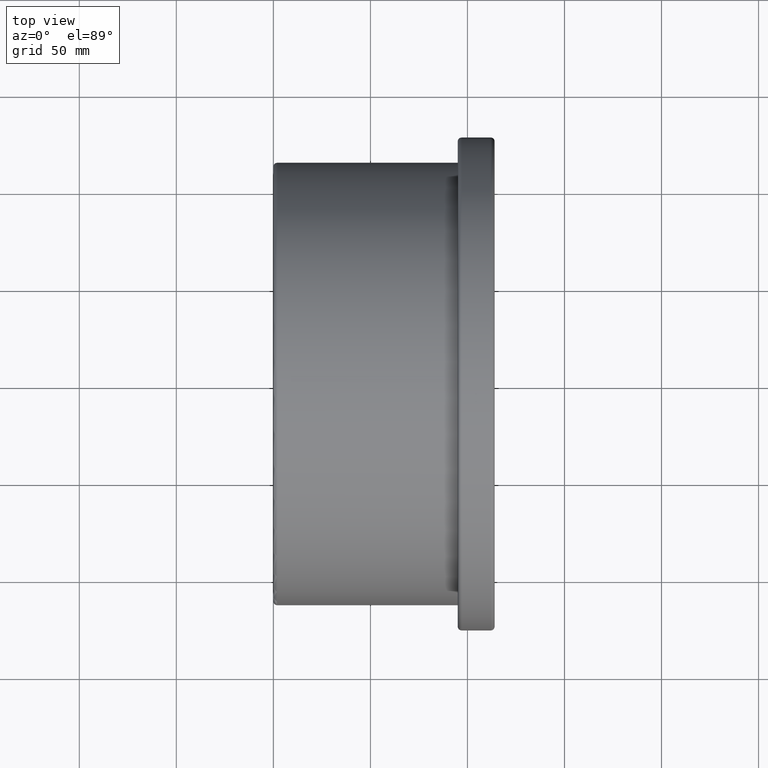
[diagram: clean part render]
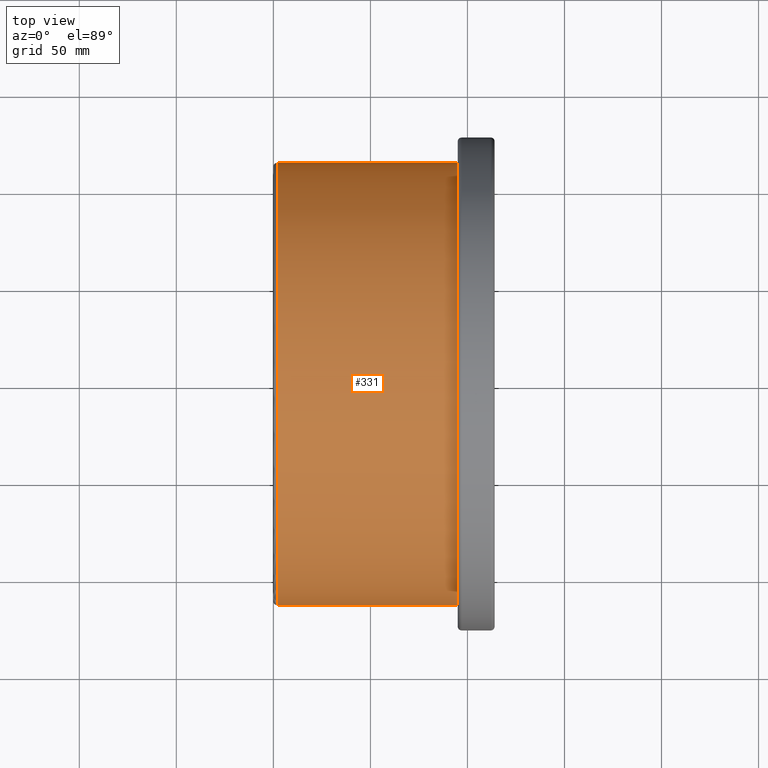
[diagram: same view with one face highlighted and labeled with its STEP entity id]
A machine part, top view. The second image highlights one B-rep face of the part: STEP entity #331.
In plain terms, the highlighted cylindrical surface (bore or boss wall) has radius 114 mm, axis along (-1, 0, 0).
Its self-contained STEP definition (entity closure, byte-faithful):
#23=CYLINDRICAL_SURFACE('',#379,114.);
#64=FACE_BOUND('',#142,.T.);
#92=FACE_OUTER_BOUND('',#141,.T.);
#141=EDGE_LOOP('',(#291));
#142=EDGE_LOOP('',(#292));
#166=CIRCLE('',#376,114.);
#167=CIRCLE('',#378,114.);
#194=VERTEX_POINT('',#2363);
#195=VERTEX_POINT('',#2366);
#227=EDGE_CURVE('',#194,#194,#166,.T.);
#228=EDGE_CURVE('',#195,#195,#167,.T.);
#291=ORIENTED_EDGE('',*,*,#227,.T.);
#292=ORIENTED_EDGE('',*,*,#228,.F.);
#331=ADVANCED_FACE('',(#92,#64),#23,.T.);
#376=AXIS2_PLACEMENT_3D('',#2364,#465,#466);
#378=AXIS2_PLACEMENT_3D('',#2367,#469,#470);
#379=AXIS2_PLACEMENT_3D('',#2368,#471,#472);
#465=DIRECTION('center_axis',(-1.,0.,0.));
#466=DIRECTION('ref_axis',(0.,0.,1.));
#469=DIRECTION('center_axis',(-1.,0.,0.));
#470=DIRECTION('ref_axis',(0.,1.,6.12323399573677E-17));
#471=DIRECTION('center_axis',(-1.,0.,0.));
#472=DIRECTION('ref_axis',(0.,-1.,0.));
#2363=CARTESIAN_POINT('',(95.,-114.,0.));
#2364=CARTESIAN_POINT('Origin',(95.,0.,0.));
#2366=CARTESIAN_POINT('',(2.,-114.,6.98048675513991E-15));
#2367=CARTESIAN_POINT('Origin',(2.,0.,0.));
#2368=CARTESIAN_POINT('Origin',(47.5,0.,0.));